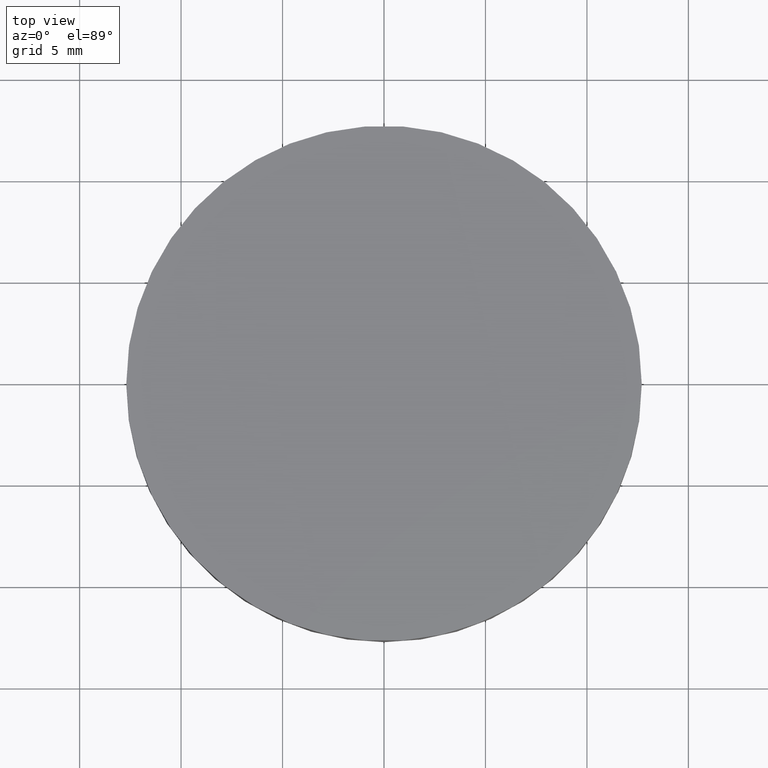
[diagram: clean part render]
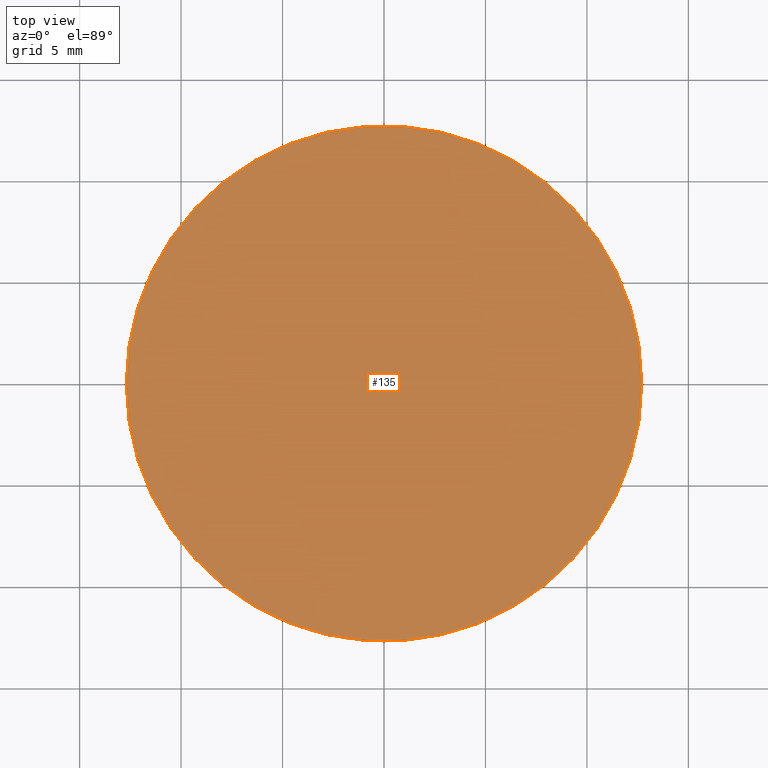
[diagram: same view with one face highlighted and labeled with its STEP entity id]
A machine part, top view. The second image highlights one B-rep face of the part: STEP entity #135.
In plain terms, the highlighted planar face has unit normal (0, 0, 1).
Its self-contained STEP definition (entity closure, byte-faithful):
#3 = CARTESIAN_POINT ( 'NONE',  ( -12.69999999999999900, 3.997792089092478900E-015, 3.000000000000000000 ) ) ;
#6 = DIRECTION ( 'NONE',  ( 1.000000000000000000, 0.0000000000000000000, 0.0000000000000000000 ) ) ;
#7 = DIRECTION ( 'NONE',  ( 0.0000000000000000000, 0.0000000000000000000, 1.000000000000000000 ) ) ;
#19 = CIRCLE ( 'NONE', #221, 12.69999999999999900 ) ;
#22 = EDGE_CURVE ( 'NONE', #67, #57, #19, .T. ) ;
#26 = PLANE ( 'NONE',  #198 ) ;
#33 = ORIENTED_EDGE ( 'NONE', *, *, #22, .F. ) ;
#34 = AXIS2_PLACEMENT_3D ( 'NONE', #77, #228, #178 ) ;
#57 = VERTEX_POINT ( 'NONE', #94 ) ;
#58 = CARTESIAN_POINT ( 'NONE',  ( 0.0000000000000000000, 26.11199999999999800, 3.000000000000000000 ) ) ;
#67 = VERTEX_POINT ( 'NONE', #3 ) ;
#77 = CARTESIAN_POINT ( 'NONE',  ( 4.996003610813200500E-016, 2.442490654175340100E-015, 3.000000000000000000 ) ) ;
#94 = CARTESIAN_POINT ( 'NONE',  ( 12.69999999999999900, 2.442490654175340100E-015, 3.000000000000000000 ) ) ;
#117 = DIRECTION ( 'NONE',  ( -0.0000000000000000000, -0.0000000000000000000, -1.000000000000000000 ) ) ;
#119 = DIRECTION ( 'NONE',  ( 1.000000000000000000, 0.0000000000000000000, -0.0000000000000000000 ) ) ;
#131 = ORIENTED_EDGE ( 'NONE', *, *, #169, .F. ) ;
#135 = ADVANCED_FACE ( 'NONE', ( #171 ), #26, .T. ) ;
#164 = CIRCLE ( 'NONE', #34, 12.69999999999999900 ) ;
#169 = EDGE_CURVE ( 'NONE', #57, #67, #164, .T. ) ;
#171 = FACE_OUTER_BOUND ( 'NONE', #223, .T. ) ;
#178 = DIRECTION ( 'NONE',  ( 1.000000000000000000, 0.0000000000000000000, 0.0000000000000000000 ) ) ;
#198 = AXIS2_PLACEMENT_3D ( 'NONE', #58, #7, #119 ) ;
#221 = AXIS2_PLACEMENT_3D ( 'NONE', #227, #117, #6 ) ;
#223 = EDGE_LOOP ( 'NONE', ( #131, #33 ) ) ;
#227 = CARTESIAN_POINT ( 'NONE',  ( 4.996003610813200500E-016, 2.442490654175340100E-015, 3.000000000000000000 ) ) ;
#228 = DIRECTION ( 'NONE',  ( -0.0000000000000000000, -0.0000000000000000000, -1.000000000000000000 ) ) ;